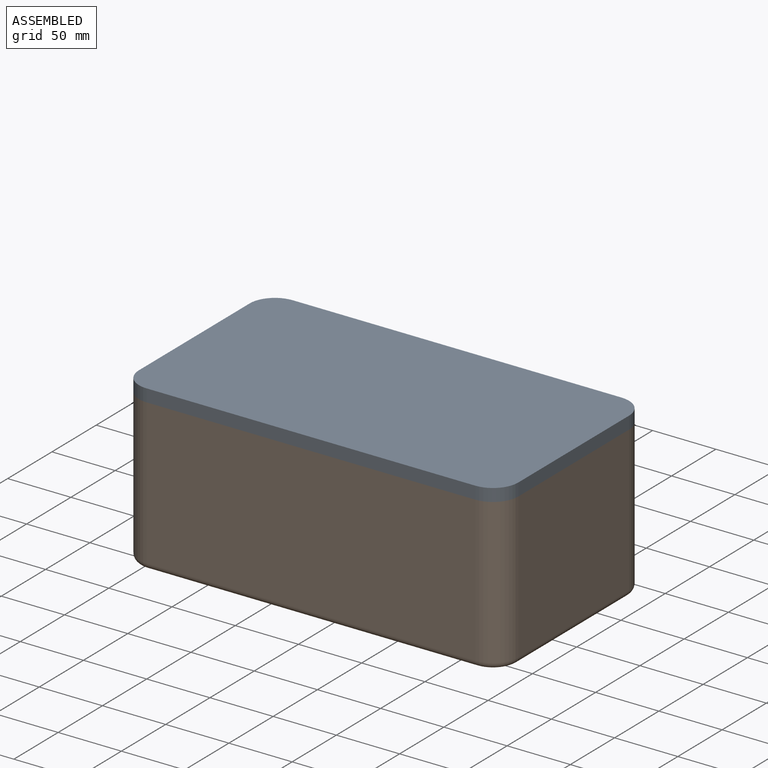
[diagram: assembled view]
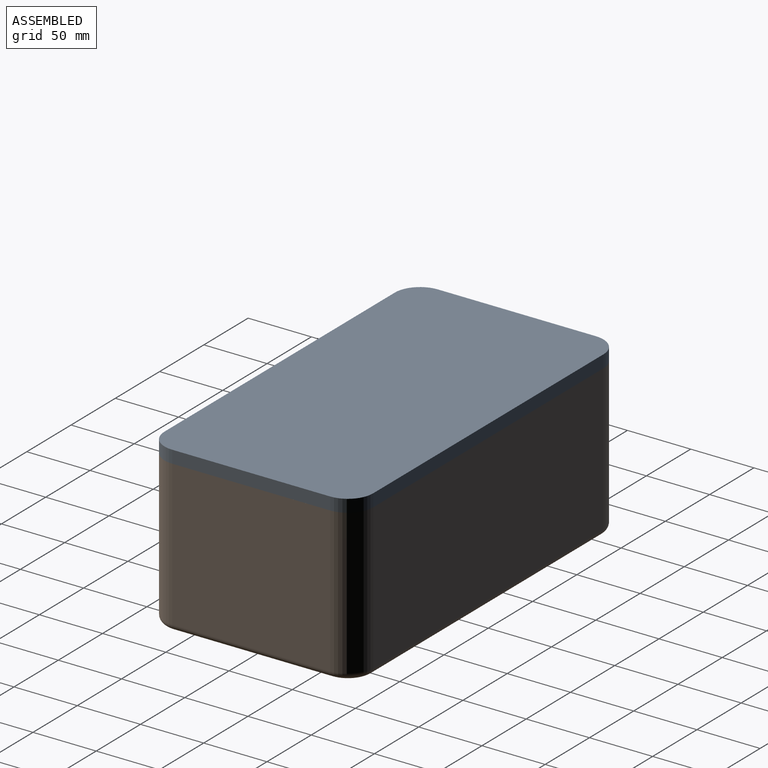
[diagram: assembled view, second angle]
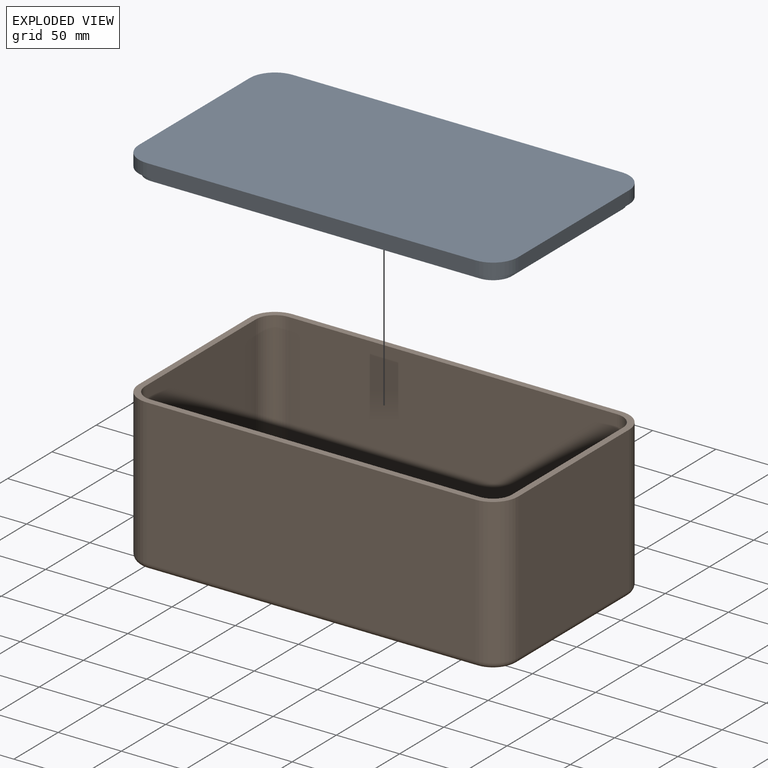
[diagram: exploded view]
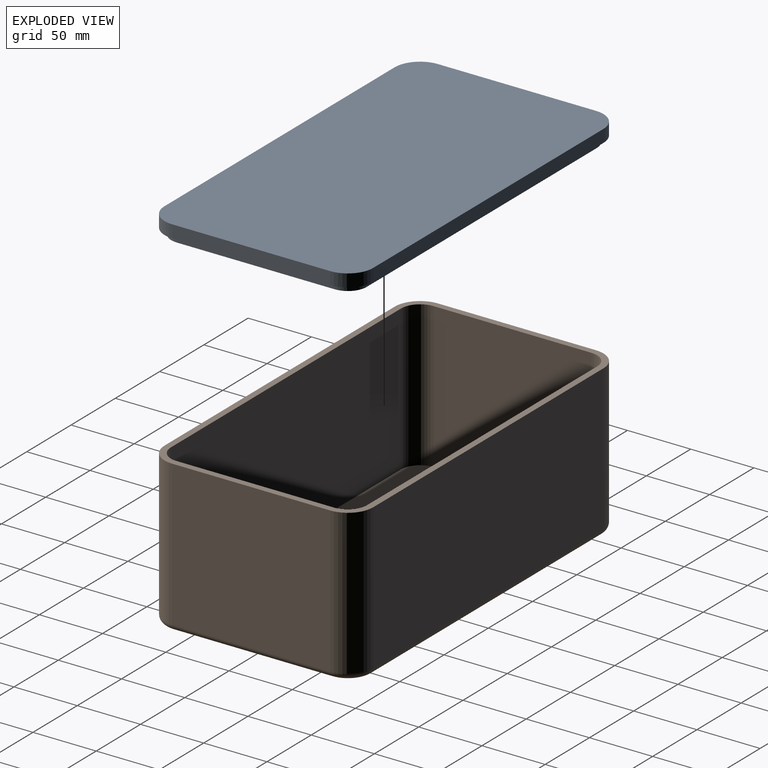
[diagram: exploded view, second angle]
ASSEMBLY  parts=2 mates=3
PART A: 19 faces, bbox 300x165x15 mm
  f0: plane 260x10mm, normal (0,-1,0), area 2600mm2, adj f4,f5,f6,f9
  f1: plane 125x10mm, normal (1,0,0), area 1250mm2, adj f4,f5,f6,f7
  f2: plane 260x10mm, normal (0,1,0), area 2600mm2, adj f4,f5,f7,f8
  f3: plane 125x10mm, normal (-1,0,0), area 1250mm2, adj f4,f5,f8,f9
  f4: plane 300x165mm, normal (0,0,1), area 49156.6mm2, adj f0,f1,f2,f3,f6,f7,f8,f9
  f5: plane 300x165mm, normal (0,0,-1), area 4572.5mm2, adj f0,f1,f2,f3,f6,f7,f8,f9
  f6: cylinder r=20mm len=20mm, axis (0,0,1), area 314.2mm2, adj f0,f1,f4,f5
  f7: cylinder r=20mm len=20mm, axis (0,0,-1), area 314.2mm2, adj f1,f2,f4,f5
  f8: cylinder r=20mm len=20mm, axis (0,0,1), area 314.2mm2, adj f2,f3,f4,f5
  f9: cylinder r=20mm len=20mm, axis (0,0,-1), area 314.2mm2, adj f0,f3,f4,f5
  f10: plane 125x5mm, normal (1,0,0), area 625mm2, adj f5,f11,f17,f18
  f11: cylinder r=14.8mm len=14.8mm, axis (0,0,1), area 116.2mm2, adj f5,f10,f12,f18
  f12: plane 260x5mm, normal (0,-1,0), area 1300mm2, adj f5,f11,f13,f18
  f13: cylinder r=14.8mm len=14.8mm, axis (0,0,1), area 116.2mm2, adj f5,f12,f14,f18
  f14: plane 125x5mm, normal (-1,0,0), area 625mm2, adj f5,f13,f15,f18
  f15: cylinder r=14.8mm len=14.8mm, axis (0,0,1), area 116.2mm2, adj f5,f14,f16,f18
  f16: plane 260x5mm, normal (0,1,0), area 1300mm2, adj f5,f15,f17,f18
  f17: cylinder r=14.8mm len=14.8mm, axis (0,0,1), area 116.2mm2, adj f5,f10,f16,f18
  f18: plane 289.6x154.6mm, normal (0,0,-1), area 44584.1mm2, adj f10,f11,f12,f13,f14,f15,f16,f17
PART B: 27 faces, bbox 303.3x168.3x120 mm
  f0: plane 300x165mm, normal (0,0,1), area 4399.8mm2, adj f1,f2,f3,f4,f6,f7,f8,f9
  f1: plane 260x115mm, normal (0,-1,0), area 29900mm2, adj f0,f6,f9,f10
  f2: plane 125x115mm, normal (1,0,0), area 14375mm2, adj f0,f6,f7,f13
  f3: plane 260x115mm, normal (0,1,0), area 29900mm2, adj f0,f7,f8,f17
  f4: plane 125x115mm, normal (-1,0,0), area 14375mm2, adj f0,f8,f9,f14
  f5: plane 290x155mm, normal (0,0,-1), area 44756.9mm2, adj f10,f11,f12,f13,f14,f15,f16,f17
  f6: cylinder r=20mm len=115mm, axis (0,0,-1), area 3612.8mm2, adj f0,f1,f2,f11
  f7: cylinder r=20mm len=115mm, axis (0,0,1), area 3612.8mm2, adj f0,f2,f3,f15
  f8: cylinder r=20mm len=115mm, axis (0,0,-1), area 3612.8mm2, adj f0,f3,f4,f16
  f9: cylinder r=20mm len=115mm, axis (0,0,1), area 3612.8mm2, adj f0,f1,f4,f12
  f10: cylinder r=5mm len=260mm, axis (-1,0,0), area 2042mm2, adj f1,f5,f11,f12
  f11: torus R=15mm, axis (0,0,1), area 224.3mm2, adj f5,f6,f10,f13
  f12: torus R=15mm, axis (0,0,1), area 224.3mm2, adj f5,f9,f10,f14
  f13: cylinder r=5mm len=125mm, axis (0,-1,0), area 981.7mm2, adj f2,f5,f11,f15
  f14: cylinder r=5mm len=125mm, axis (0,1,0), area 981.7mm2, adj f4,f5,f12,f16
  f15: torus R=15mm, axis (0,0,1), area 224.3mm2, adj f5,f7,f13,f17
  f16: torus R=15mm, axis (0,0,1), area 224.3mm2, adj f5,f8,f14,f17
  f17: cylinder r=5mm len=260mm, axis (1,0,0), area 2042mm2, adj f3,f5,f15,f16
  f18: plane 260x115mm, normal (0,1,0), area 29900mm2, adj f0,f22,f23,f26
  f19: plane 125x115mm, normal (-1,0,0), area 14375mm2, adj f0,f22,f23,f24
  f20: plane 260x115mm, normal (0,-1,0), area 29900mm2, adj f0,f22,f24,f25
  f21: plane 125x115mm, normal (1,0,0), area 14375mm2, adj f0,f22,f25,f26
  f22: plane 290x155mm, normal (0,0,1), area 44756.9mm2, adj f18,f19,f20,f21,f23,f24,f25,f26
  f23: cylinder r=15mm len=115mm, axis (0,0,-1), area 2709.6mm2, adj f0,f18,f19,f22
  f24: cylinder r=15mm len=115mm, axis (0,0,1), area 2709.6mm2, adj f0,f19,f20,f22
  f25: cylinder r=15mm len=115mm, axis (0,0,-1), area 2709.6mm2, adj f0,f20,f21,f22
  f26: cylinder r=15mm len=115mm, axis (0,0,1), area 2709.6mm2, adj f0,f18,f21,f22
PLACE A rot(axis=(0,0,1),180deg) t=(13.66,-22.87,8.86)mm
PLACE B t=(13.66,-22.87,8.86)mm fixed
MATE slider B.f0 <-> A.f5  axis (0,0,1) through (13.66,-22.87,8.86)mm
MATE cylindrical B.f8 <-> A.f6  axis (0,0,1) through (-116.34,39.63,8.86)mm
MATE cylindrical B.f7 <-> A.f9  axis (0,0,1) through (143.66,39.63,8.86)mm
